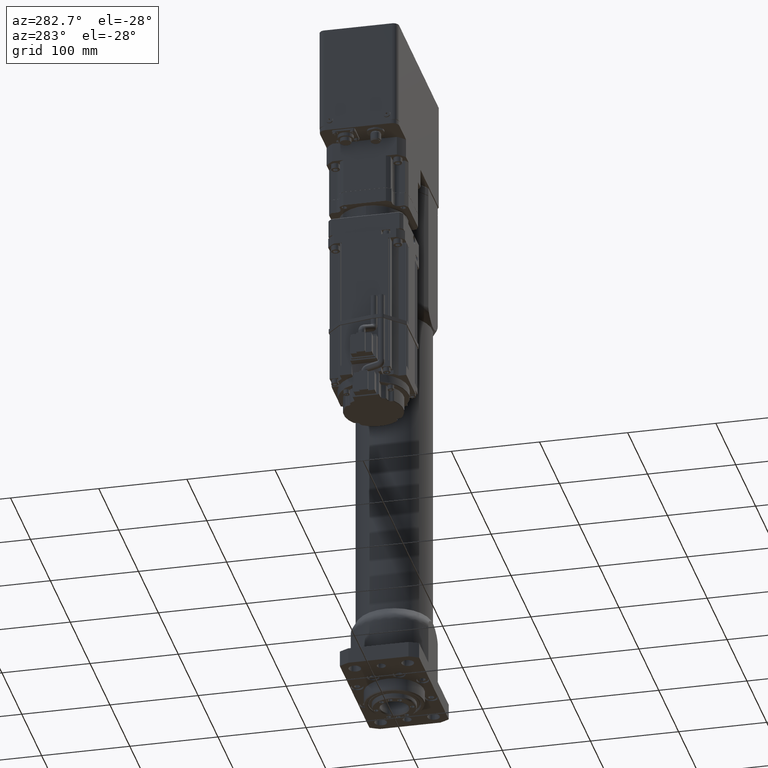
[diagram: clean part render]
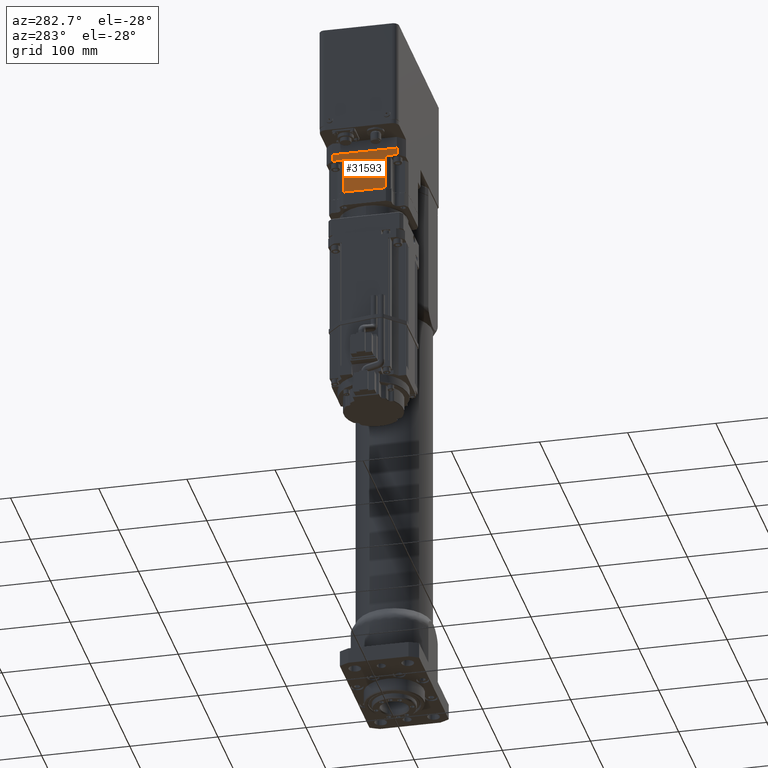
[diagram: same view with one face highlighted and labeled with its STEP entity id]
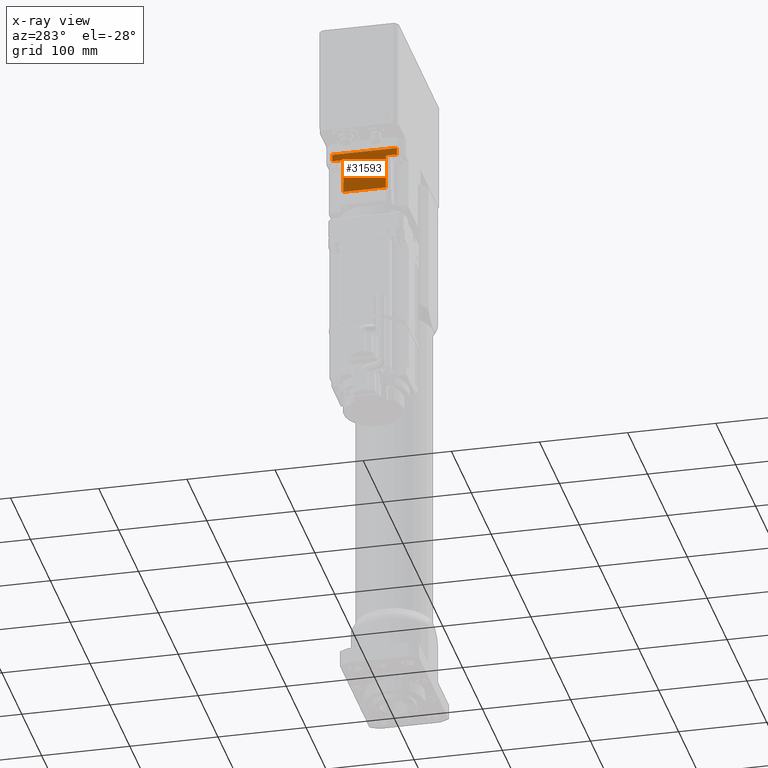
[diagram: x-ray of the same camera — body ghosted, the highlighted face saturated]
A machine part, auxiliary view. The second image highlights one B-rep face of the part: STEP entity #31593.
The next image is the same camera in x-ray: the body ghosted, the highlighted face saturated — about 0% of this face is hidden behind the body in this view.
In plain terms, the highlighted planar face has unit normal (-1, 0, -0).
Its self-contained STEP definition (entity closure, byte-faithful):
#567=PLANE('',#33675);
#1731=LINE('',#47925,#4384);
#1741=LINE('',#47969,#4394);
#1744=LINE('',#47983,#4397);
#1771=LINE('',#48055,#4424);
#1773=LINE('',#48060,#4426);
#1780=LINE('',#48077,#4433);
#1781=LINE('',#48078,#4434);
#1782=LINE('',#48079,#4435);
#4384=VECTOR('',#37715,12.59234892706);
#4394=VECTOR('',#37751,12.59234892706);
#4397=VECTOR('',#37764,7.99999999999997);
#4424=VECTOR('',#37835,40.);
#4426=VECTOR('',#37841,40.);
#4433=VECTOR('',#37858,7.99999999999997);
#4434=VECTOR('',#37859,73.184697854128);
#4435=VECTOR('',#37860,48.);
#7647=FACE_OUTER_BOUND('',#9437,.T.);
#9437=EDGE_LOOP('',(#21669,#21670,#21671,#21672,#21673,#21674,#21675,#21676));
#13337=VERTEX_POINT('',#47910);
#13344=VERTEX_POINT('',#47923);
#13364=VERTEX_POINT('',#47966);
#13365=VERTEX_POINT('',#47968);
#13371=VERTEX_POINT('',#47982);
#13394=VERTEX_POINT('',#48053);
#13395=VERTEX_POINT('',#48058);
#13400=VERTEX_POINT('',#48076);
#16514=EDGE_CURVE('',#13344,#13337,#1731,.T.);
#16534=EDGE_CURVE('',#13364,#13365,#1741,.T.);
#16541=EDGE_CURVE('',#13371,#13337,#1744,.T.);
#16577=EDGE_CURVE('',#13394,#13344,#1771,.T.);
#16580=EDGE_CURVE('',#13395,#13365,#1773,.T.);
#16588=EDGE_CURVE('',#13400,#13364,#1780,.T.);
#16589=EDGE_CURVE('',#13371,#13400,#1781,.T.);
#16590=EDGE_CURVE('',#13395,#13394,#1782,.T.);
#21669=ORIENTED_EDGE('',*,*,#16534,.F.);
#21670=ORIENTED_EDGE('',*,*,#16588,.F.);
#21671=ORIENTED_EDGE('',*,*,#16589,.F.);
#21672=ORIENTED_EDGE('',*,*,#16541,.T.);
#21673=ORIENTED_EDGE('',*,*,#16514,.F.);
#21674=ORIENTED_EDGE('',*,*,#16577,.F.);
#21675=ORIENTED_EDGE('',*,*,#16590,.F.);
#21676=ORIENTED_EDGE('',*,*,#16580,.T.);
#31593=ADVANCED_FACE('',(#7647),#567,.T.);
#33675=AXIS2_PLACEMENT_3D('',#48075,#37856,#37857);
#37715=DIRECTION('',(4.23199082956555E-14,1.,-1.12853088788415E-14));
#37751=DIRECTION('',(4.23199082956555E-14,1.,-1.69279633182622E-14));
#37764=DIRECTION('',(1.59872115546023E-13,-5.09037256790636E-13,-1.));
#37835=DIRECTION('',(-1.62536650805123E-13,1.01030295240889E-14,1.));
#37841=DIRECTION('',(-1.62092561595273E-13,1.01030295240889E-14,1.));
#37856=DIRECTION('center_axis',(-1.,4.20205999107569E-14,-1.62838556697877E-13));
#37857=DIRECTION('ref_axis',(-1.62838556697877E-13,0.,1.));
#37858=DIRECTION('',(1.55431223447522E-13,4.88498130835071E-13,-1.));
#37859=DIRECTION('',(-4.22337044653399E-14,-1.,9.70889757823905E-15));
#37860=DIRECTION('',(4.21884749357559E-14,1.,-1.03620815631681E-14));
#47910=CARTESIAN_POINT('',(-148.996933041043,36.5923489270423,593.));
#47923=CARTESIAN_POINT('',(-148.996933041043,23.9999999999823,593.));
#47925=CARTESIAN_POINT('',(-148.996933041043,23.9999999999823,593.));
#47966=CARTESIAN_POINT('',(-148.996933041046,-36.5923489270777,593.));
#47968=CARTESIAN_POINT('',(-148.996933041045,-24.0000000000177,593.));
#47969=CARTESIAN_POINT('',(-148.996933041046,-36.5923489270777,593.));
#47982=CARTESIAN_POINT('',(-148.996933041044,36.5923489270464,601.));
#47983=CARTESIAN_POINT('',(-148.996933041044,36.5923489270464,601.));
#48053=CARTESIAN_POINT('',(-148.996933041037,23.9999999999819,553.));
#48055=CARTESIAN_POINT('',(-148.996933041037,23.9999999999819,553.));
#48058=CARTESIAN_POINT('',(-148.996933041039,-24.0000000000181,553.));
#48060=CARTESIAN_POINT('',(-148.996933041039,-24.0000000000181,553.));
#48075=CARTESIAN_POINT('Origin',(-148.996933041047,-36.5923489270777,601.));
#48076=CARTESIAN_POINT('',(-148.996933041047,-36.5923489270817,601.));
#48077=CARTESIAN_POINT('',(-148.996933041047,-36.5923489270817,601.));
#48078=CARTESIAN_POINT('',(-148.996933041044,36.5923489270464,601.));
#48079=CARTESIAN_POINT('',(-148.996933041039,-24.0000000000181,553.));